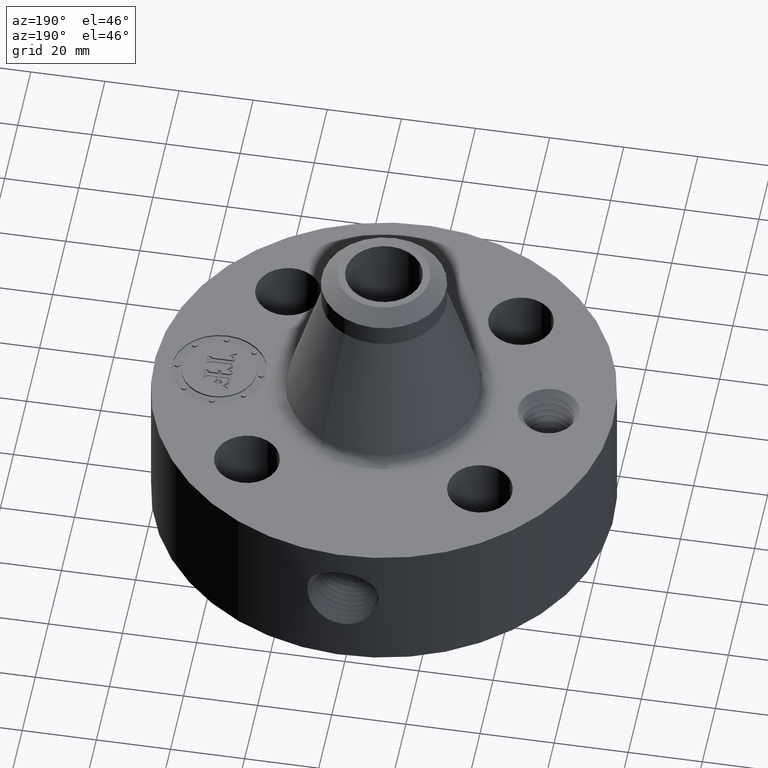
[diagram: clean part render]
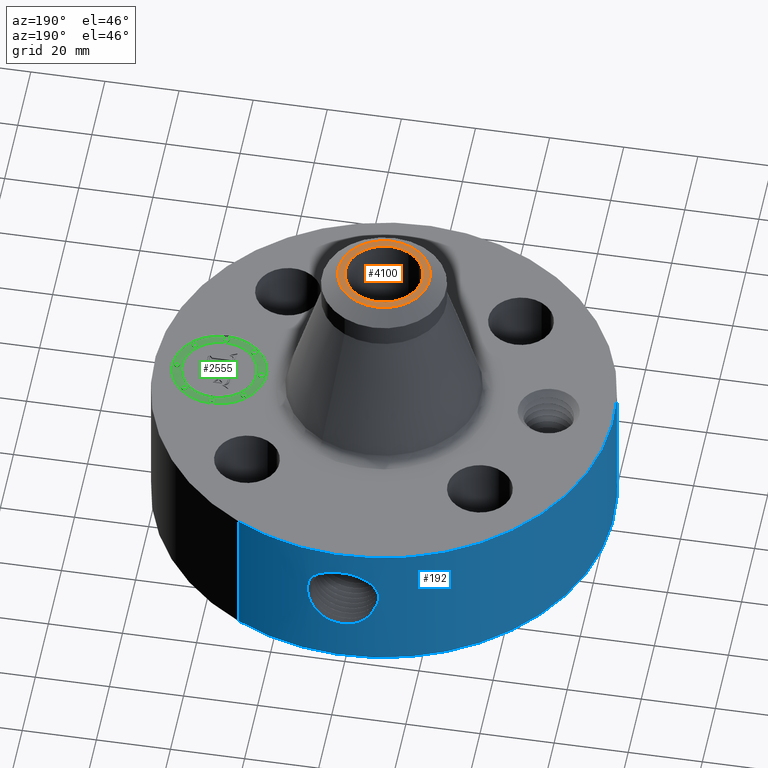
[diagram: same view with three faces highlighted in distinct colors, each labeled with its STEP entity id]
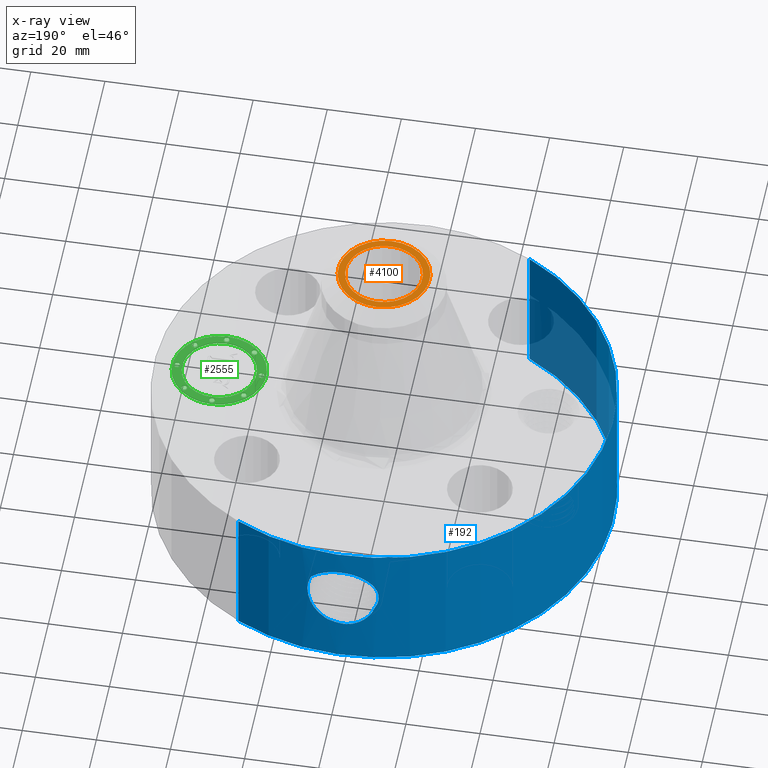
[diagram: x-ray of the same camera — body ghosted, the three highlighted faces saturated]
A machine part, auxiliary view with three faces highlighted in distinct colors.
The next image is the same camera in x-ray (body ghosted, the three faces saturated) — at least one of them is partly hidden behind the body in this view.
Their STEP definitions:

[orange] entity #4100 — the highlighted planar face has unit normal (0, 0, -1).
#2819=AXIS2_PLACEMENT_3D('Circle Axis2P3D',#2817,#2818,$) ;
#2893=AXIS2_PLACEMENT_3D('Circle Axis2P3D',#2891,#2892,$) ;
#4076=AXIS2_PLACEMENT_3D('Plane Axis2P3D',#4073,#4074,#4075) ;
#4080=AXIS2_PLACEMENT_3D('Circle Axis2P3D',#4078,#4079,$) ;
#4089=AXIS2_PLACEMENT_3D('Circle Axis2P3D',#4087,#4088,$) ;
#2817=CARTESIAN_POINT('Axis2P3D Location',(0.,0.,3.31000000001)) ;
#2821=CARTESIAN_POINT('Vertex',(0.195365906982,0.357614893972,3.31000000001)) ;
#2823=CARTESIAN_POINT('Vertex',(-0.195365906982,-0.357614893972,3.31000000001)) ;
#2891=CARTESIAN_POINT('Axis2P3D Location',(0.,0.,3.31000000001)) ;
#4073=CARTESIAN_POINT('Axis2P3D Location',(0.,0.660000000003,3.31000000001)) ;
#4078=CARTESIAN_POINT('Axis2P3D Location',(0.,0.,3.31000000001)) ;
#4082=CARTESIAN_POINT('Vertex',(0.233115949392,-0.426715883097,3.31000000001)) ;
#4084=CARTESIAN_POINT('Vertex',(-0.233115949392,0.426715883097,3.31000000001)) ;
#4087=CARTESIAN_POINT('Axis2P3D Location',(0.,0.,3.31000000001)) ;
#2818=DIRECTION('Axis2P3D Direction',(0.,0.,-0.0393700787402)) ;
#2892=DIRECTION('Axis2P3D Direction',(0.,0.,-0.0393700787402)) ;
#4074=DIRECTION('Axis2P3D Direction',(0.,0.,-0.0393700787402)) ;
#4075=DIRECTION('Axis2P3D XDirection',(0.0393700787402,0.,0.)) ;
#4079=DIRECTION('Axis2P3D Direction',(0.,0.,-0.0393700787402)) ;
#4088=DIRECTION('Axis2P3D Direction',(0.,0.,-0.0393700787402)) ;
#4093=ORIENTED_EDGE('',*,*,#4086,.T.) ;
#4094=ORIENTED_EDGE('',*,*,#4091,.T.) ;
#4097=ORIENTED_EDGE('',*,*,#2895,.T.) ;
#4098=ORIENTED_EDGE('',*,*,#2825,.T.) ;
#4099=FACE_BOUND('',#4096,.T.) ;
#4100=ADVANCED_FACE('PartBody',(#4095,#4099),#4077,.F.) ;
#2820=CIRCLE('generated circle',#2819,0.407500000002) ;
#2894=CIRCLE('generated circle',#2893,0.407500000002) ;
#4081=CIRCLE('generated circle',#4080,0.486240157482) ;
#4090=CIRCLE('generated circle',#4089,0.486240157482) ;
#2825=EDGE_CURVE('',#2822,#2824,#2820,.T.) ;
#2895=EDGE_CURVE('',#2824,#2822,#2894,.T.) ;
#4086=EDGE_CURVE('',#4083,#4085,#4081,.F.) ;
#4091=EDGE_CURVE('',#4085,#4083,#4090,.F.) ;
#4092=EDGE_LOOP('',(#4093,#4094)) ;
#4096=EDGE_LOOP('',(#4097,#4098)) ;
#4095=FACE_OUTER_BOUND('',#4092,.T.) ;
#4077=PLANE('',#4076) ;
#2822=VERTEX_POINT('',#2821) ;
#2824=VERTEX_POINT('',#2823) ;
#4083=VERTEX_POINT('',#4082) ;
#4085=VERTEX_POINT('',#4084) ;

[blue] entity #192 — the highlighted cylindrical surface (partial cylindrical patch) has radius 61.976 mm, axis along (0, 0, -1).
#38=AXIS2_PLACEMENT_3D('Cylinder Axis2P3D',#35,#36,#37) ;
#42=AXIS2_PLACEMENT_3D('Circle Axis2P3D',#40,#41,$) ;
#58=AXIS2_PLACEMENT_3D('Circle Axis2P3D',#56,#57,$) ;
#35=CARTESIAN_POINT('Axis2P3D Location',(0.,0.,1.65500000001)) ;
#40=CARTESIAN_POINT('Axis2P3D Location',(0.,0.,0.0600000000002)) ;
#44=CARTESIAN_POINT('Vertex',(-1.1697983142,-2.14130145102,0.0600000000002)) ;
#46=CARTESIAN_POINT('Vertex',(1.1697983142,2.14130145102,0.0600000000002)) ;
#49=CARTESIAN_POINT('Line Origine',(-1.1697983142,-2.14130145102,0.810000000003)) ;
#53=CARTESIAN_POINT('Vertex',(-1.1697983142,-2.14130145102,1.56000000001)) ;
#56=CARTESIAN_POINT('Axis2P3D Location',(0.,0.,1.56000000001)) ;
#60=CARTESIAN_POINT('Vertex',(1.1697983142,2.14130145102,1.56000000001)) ;
#63=CARTESIAN_POINT('Line Origine',(1.1697983142,2.14130145102,0.810000000003)) ;
#75=CARTESIAN_POINT('Control Point',(-0.16192159428,2.4346214074,1.25474246112)) ;
#76=CARTESIAN_POINT('Control Point',(-0.124761678529,2.43709283592,1.27394650423)) ;
#77=CARTESIAN_POINT('Control Point',(-0.0845285010664,2.43901250296,1.28730102498)) ;
#78=CARTESIAN_POINT('Control Point',(-0.0426266264087,2.43998754964,1.2940330846)) ;
#79=CARTESIAN_POINT('Control Point',(-0.000718733828818,2.43999989415,1.29411849633)) ;
#80=CARTESIAN_POINT('Vertex',(-0.161921600554,2.43462140699,1.25474245803)) ;
#82=CARTESIAN_POINT('Vertex',(-0.000718469330936,2.43999989423,1.29411850216)) ;
#86=CARTESIAN_POINT('Control Point',(-0.16989837306,2.43407776024,1.25094225976)) ;
#87=CARTESIAN_POINT('Control Point',(-0.167252431002,2.43426244672,1.25223769882)) ;
#88=CARTESIAN_POINT('Control Point',(-0.164593290179,2.43444371847,1.25350443879)) ;
#89=CARTESIAN_POINT('Control Point',(-0.161921599901,2.43462140702,1.25474245516)) ;
#90=CARTESIAN_POINT('Vertex',(-0.16989837306,2.43407776024,1.25094225976)) ;
#94=CARTESIAN_POINT('Control Point',(-0.328116375832,2.41783780348,0.808661705007)) ;
#95=CARTESIAN_POINT('Control Point',(-0.351266820575,2.41469613699,0.847920653402)) ;
#96=CARTESIAN_POINT('Control Point',(-0.367537068292,2.41220597774,0.89196714565)) ;
#97=CARTESIAN_POINT('Control Point',(-0.374754426078,2.41102143693,0.939647099953)) ;
#98=CARTESIAN_POINT('Control Point',(-0.370017243739,2.41184047452,1.00871566147)) ;
#99=CARTESIAN_POINT('Control Point',(-0.346589033701,2.41527741307,1.0725719509)) ;
#100=CARTESIAN_POINT('Control Point',(-0.337668385426,2.41655315053,1.09162203602)) ;
#101=CARTESIAN_POINT('Control Point',(-0.307764301181,2.42066054004,1.1438749814)) ;
#102=CARTESIAN_POINT('Control Point',(-0.26699888278,2.42558826776,1.18820864016)) ;
#103=CARTESIAN_POINT('Control Point',(-0.236947873253,2.428785004,1.21314596385)) ;
#104=CARTESIAN_POINT('Control Point',(-0.204355865071,2.4316726309,1.23407205562)) ;
#105=CARTESIAN_POINT('Control Point',(-0.16989837306,2.43407776024,1.25094225976)) ;
#106=CARTESIAN_POINT('Vertex',(-0.328116855676,2.4178375316,0.808661757571)) ;
#110=CARTESIAN_POINT('Control Point',(-0.320424227439,2.41886922228,0.790797428483)) ;
#111=CARTESIAN_POINT('Control Point',(-0.32315137982,2.41850796022,0.796680963763)) ;
#112=CARTESIAN_POINT('Control Point',(-0.325717354748,2.41816336819,0.802639990313)) ;
#113=CARTESIAN_POINT('Control Point',(-0.328118233166,2.41783755143,0.808665582028)) ;
#114=CARTESIAN_POINT('Vertex',(-0.320424889206,2.41886937017,0.790798496527)) ;
#118=CARTESIAN_POINT('Control Point',(-0.0268393869742,2.43985238229,0.530897557486)) ;
#119=CARTESIAN_POINT('Control Point',(-0.111814828561,2.43891761723,0.542087008345)) ;
#120=CARTESIAN_POINT('Control Point',(-0.192381472719,2.43423204041,0.58204711516)) ;
#121=CARTESIAN_POINT('Control Point',(-0.253315115577,2.42735806073,0.644291367861)) ;
#122=CARTESIAN_POINT('Control Point',(-0.296042119694,2.42209908944,0.715167636117)) ;
#123=CARTESIAN_POINT('Control Point',(-0.320424558949,2.41886917837,0.790798572524)) ;
#124=CARTESIAN_POINT('Vertex',(-0.0268393869742,2.43985238229,0.530897557486)) ;
#128=CARTESIAN_POINT('Control Point',(-0.0268393869742,2.43985238229,0.530897557486)) ;
#129=CARTESIAN_POINT('Control Point',(-0.0178847963814,2.43995088649,0.530836461707)) ;
#130=CARTESIAN_POINT('Control Point',(-0.00893312393866,2.44000001,0.530995456445)) ;
#131=CARTESIAN_POINT('Control Point',(2.72878353701E-006,2.44000000001,0.531374667804)) ;
#132=CARTESIAN_POINT('Vertex',(2.72878353722E-006,2.44000000001,0.531374667804)) ;
#136=CARTESIAN_POINT('Control Point',(0.165476014271,2.43438240397,0.565083204059)) ;
#137=CARTESIAN_POINT('Control Point',(0.112562343707,2.43797918617,0.544988923625)) ;
#138=CARTESIAN_POINT('Control Point',(0.0565393148663,2.43999993678,0.533773914324)) ;
#139=CARTESIAN_POINT('Control Point',(2.72878353703E-006,2.44000000001,0.531374667804)) ;
#140=CARTESIAN_POINT('Vertex',(0.165476014271,2.43438240397,0.565083204059)) ;
#144=CARTESIAN_POINT('Control Point',(0.165476014271,2.43438240397,0.565083204059)) ;
#145=CARTESIAN_POINT('Control Point',(0.175740725453,2.43368466499,0.570334729546)) ;
#146=CARTESIAN_POINT('Control Point',(0.185738859904,2.43293967132,0.576087631637)) ;
#147=CARTESIAN_POINT('Control Point',(0.195421989316,2.43216164063,0.582285375744)) ;
#148=CARTESIAN_POINT('Vertex',(0.195421989316,2.43216164063,0.582285375744)) ;
#152=CARTESIAN_POINT('Control Point',(0.195421989316,2.43216164063,0.582285375744)) ;
#153=CARTESIAN_POINT('Control Point',(0.24799825553,2.42793718516,0.615937124183)) ;
#154=CARTESIAN_POINT('Control Point',(0.293011536399,2.42289055424,0.660601235609)) ;
#155=CARTESIAN_POINT('Control Point',(0.328229760172,2.41805808128,0.712425717433)) ;
#156=CARTESIAN_POINT('Control Point',(0.382261864298,2.41005605017,0.829676974235)) ;
#157=CARTESIAN_POINT('Control Point',(0.395270513622,2.40773032595,0.958065769523)) ;
#158=CARTESIAN_POINT('Control Point',(0.390965855304,2.40847371399,1.02561774612)) ;
#159=CARTESIAN_POINT('Control Point',(0.375402852344,2.41110143503,1.09202151238)) ;
#160=CARTESIAN_POINT('Control Point',(0.348525615673,2.4149803095,1.15442637902)) ;
#161=CARTESIAN_POINT('Vertex',(0.348525615673,2.4149803095,1.15442637902)) ;
#165=CARTESIAN_POINT('Control Point',(0.348525615673,2.4149803095,1.15442637902)) ;
#166=CARTESIAN_POINT('Control Point',(0.29430195647,2.42280577049,1.21385963823)) ;
#167=CARTESIAN_POINT('Control Point',(0.226049836595,2.43110253319,1.25810660708)) ;
#168=CARTESIAN_POINT('Control Point',(0.151999424156,2.43708486052,1.28575229226)) ;
#169=CARTESIAN_POINT('Control Point',(0.0753413751175,2.44000079858,1.29784713552)) ;
#170=CARTESIAN_POINT('Control Point',(-2.58579354753E-005,2.43999999987,1.29415298447)) ;
#171=CARTESIAN_POINT('Vertex',(-2.58579354725E-005,2.43999999987,1.29415298447)) ;
#175=CARTESIAN_POINT('Control Point',(-0.000718469314818,2.43999989423,1.29411850215)) ;
#176=CARTESIAN_POINT('Control Point',(-0.000372184904082,2.4399999962,1.29413600915)) ;
#177=CARTESIAN_POINT('Control Point',(-2.58579482161E-005,2.43999999987,1.29415298447)) ;
#36=DIRECTION('Axis2P3D Direction',(0.,0.,-0.0393700787402)) ;
#37=DIRECTION('Axis2P3D XDirection',(0.0188750212049,0.0345504945626,0.)) ;
#41=DIRECTION('Axis2P3D Direction',(0.,0.,-0.0393700787402)) ;
#50=DIRECTION('Vector Direction',(0.,0.,-0.0393700787402)) ;
#57=DIRECTION('Axis2P3D Direction',(0.,0.,-0.0393700787402)) ;
#64=DIRECTION('Vector Direction',(0.,0.,-0.0393700787402)) ;
#51=VECTOR('Line Direction',#50,0.0393700787402) ;
#65=VECTOR('Line Direction',#64,0.0393700787402) ;
#69=ORIENTED_EDGE('',*,*,#48,.F.) ;
#70=ORIENTED_EDGE('',*,*,#55,.T.) ;
#71=ORIENTED_EDGE('',*,*,#62,.T.) ;
#72=ORIENTED_EDGE('',*,*,#67,.F.) ;
#180=ORIENTED_EDGE('',*,*,#84,.F.) ;
#181=ORIENTED_EDGE('',*,*,#92,.F.) ;
#182=ORIENTED_EDGE('',*,*,#108,.F.) ;
#183=ORIENTED_EDGE('',*,*,#116,.F.) ;
#184=ORIENTED_EDGE('',*,*,#126,.F.) ;
#185=ORIENTED_EDGE('',*,*,#134,.T.) ;
#186=ORIENTED_EDGE('',*,*,#142,.F.) ;
#187=ORIENTED_EDGE('',*,*,#150,.T.) ;
#188=ORIENTED_EDGE('',*,*,#163,.T.) ;
#189=ORIENTED_EDGE('',*,*,#173,.T.) ;
#190=ORIENTED_EDGE('',*,*,#178,.F.) ;
#191=FACE_BOUND('',#179,.T.) ;
#192=ADVANCED_FACE('PartBody',(#73,#191),#39,.T.) ;
#74=B_SPLINE_CURVE_WITH_KNOTS('',4,(#75,#76,#77,#78,#79),.UNSPECIFIED.,.F.,.U.,(5,5),(0.175518252428,6.37462366422),.UNSPECIFIED.) ;
#85=B_SPLINE_CURVE_WITH_KNOTS('',3,(#86,#87,#88,#89),.UNSPECIFIED.,.F.,.U.,(4,4),(0.,0.330159466821),.UNSPECIFIED.) ;
#93=B_SPLINE_CURVE_WITH_KNOTS('',5,(#94,#95,#96,#97,#98,#99,#100,#101,#102,#103,#104,#105),.UNSPECIFIED.,.F.,.U.,(6,3,3,6),(0.,8.5309521216,12.3556763001,19.5216604227),.UNSPECIFIED.) ;
#109=B_SPLINE_CURVE_WITH_KNOTS('',3,(#110,#111,#112,#113),.UNSPECIFIED.,.F.,.U.,(4,4),(9.5654075013,10.2865901352),.UNSPECIFIED.) ;
#117=B_SPLINE_CURVE_WITH_KNOTS('',5,(#118,#119,#120,#121,#122,#123),.UNSPECIFIED.,.F.,.U.,(6,6),(0.,14.8989557169),.UNSPECIFIED.) ;
#127=B_SPLINE_CURVE_WITH_KNOTS('',3,(#128,#129,#130,#131),.UNSPECIFIED.,.F.,.U.,(4,4),(0.,0.933901051561),.UNSPECIFIED.) ;
#135=B_SPLINE_CURVE_WITH_KNOTS('',3,(#136,#137,#138,#139),.UNSPECIFIED.,.F.,.U.,(4,4),(0.,5.90873404336),.UNSPECIFIED.) ;
#143=B_SPLINE_CURVE_WITH_KNOTS('',3,(#144,#145,#146,#147),.UNSPECIFIED.,.F.,.U.,(4,4),(0.,1.203436921),.UNSPECIFIED.) ;
#151=B_SPLINE_CURVE_WITH_KNOTS('',5,(#152,#153,#154,#155,#156,#157,#158,#159,#160),.UNSPECIFIED.,.F.,.U.,(6,3,6),(0.,10.8904564305,22.7389374471),.UNSPECIFIED.) ;
#164=B_SPLINE_CURVE_WITH_KNOTS('',5,(#165,#166,#167,#168,#169,#170),.UNSPECIFIED.,.F.,.U.,(6,6),(0.,14.0876899551),.UNSPECIFIED.) ;
#174=B_SPLINE_CURVE_WITH_KNOTS('',2,(#175,#176,#177),.UNSPECIFIED.,.F.,.U.,(3,3),(1.28066519652,1.30655945912),.UNSPECIFIED.) ;
#43=CIRCLE('generated circle',#42,2.44000000001) ;
#59=CIRCLE('generated circle',#58,2.44000000001) ;
#39=CYLINDRICAL_SURFACE('generated cylinder',#38,2.44000000001) ;
#48=EDGE_CURVE('',#45,#47,#43,.T.) ;
#55=EDGE_CURVE('',#45,#54,#52,.F.) ;
#62=EDGE_CURVE('',#54,#61,#59,.T.) ;
#67=EDGE_CURVE('',#47,#61,#66,.F.) ;
#84=EDGE_CURVE('',#81,#83,#74,.T.) ;
#92=EDGE_CURVE('',#91,#81,#85,.T.) ;
#108=EDGE_CURVE('',#107,#91,#93,.T.) ;
#116=EDGE_CURVE('',#115,#107,#109,.T.) ;
#126=EDGE_CURVE('',#125,#115,#117,.T.) ;
#134=EDGE_CURVE('',#125,#133,#127,.T.) ;
#142=EDGE_CURVE('',#141,#133,#135,.T.) ;
#150=EDGE_CURVE('',#141,#149,#143,.T.) ;
#163=EDGE_CURVE('',#149,#162,#151,.T.) ;
#173=EDGE_CURVE('',#162,#172,#164,.T.) ;
#178=EDGE_CURVE('',#83,#172,#174,.T.) ;
#68=EDGE_LOOP('',(#69,#70,#71,#72)) ;
#179=EDGE_LOOP('',(#180,#181,#182,#183,#184,#185,#186,#187,#188,#189,#190)) ;
#73=FACE_OUTER_BOUND('',#68,.T.) ;
#52=LINE('Line',#49,#51) ;
#66=LINE('Line',#63,#65) ;
#45=VERTEX_POINT('',#44) ;
#47=VERTEX_POINT('',#46) ;
#54=VERTEX_POINT('',#53) ;
#61=VERTEX_POINT('',#60) ;
#81=VERTEX_POINT('',#80) ;
#83=VERTEX_POINT('',#82) ;
#91=VERTEX_POINT('',#90) ;
#107=VERTEX_POINT('',#106) ;
#115=VERTEX_POINT('',#114) ;
#125=VERTEX_POINT('',#124) ;
#133=VERTEX_POINT('',#132) ;
#141=VERTEX_POINT('',#140) ;
#149=VERTEX_POINT('',#148) ;
#162=VERTEX_POINT('',#161) ;
#172=VERTEX_POINT('',#171) ;

[green] entity #2555 — the highlighted planar face has unit normal (0, 0, 1).
#1802=AXIS2_PLACEMENT_3D('Circle Axis2P3D',#1800,#1801,$) ;
#1829=AXIS2_PLACEMENT_3D('Circle Axis2P3D',#1827,#1828,$) ;
#2387=AXIS2_PLACEMENT_3D('Plane Axis2P3D',#2384,#2385,#2386) ;
#2395=AXIS2_PLACEMENT_3D('Circle Axis2P3D',#2393,#2394,$) ;
#2404=AXIS2_PLACEMENT_3D('Circle Axis2P3D',#2402,#2403,$) ;
#2413=AXIS2_PLACEMENT_3D('Circle Axis2P3D',#2411,#2412,$) ;
#2422=AXIS2_PLACEMENT_3D('Circle Axis2P3D',#2420,#2421,$) ;
#2431=AXIS2_PLACEMENT_3D('Circle Axis2P3D',#2429,#2430,$) ;
#2440=AXIS2_PLACEMENT_3D('Circle Axis2P3D',#2438,#2439,$) ;
#2449=AXIS2_PLACEMENT_3D('Circle Axis2P3D',#2447,#2448,$) ;
#2458=AXIS2_PLACEMENT_3D('Circle Axis2P3D',#2456,#2457,$) ;
#2467=AXIS2_PLACEMENT_3D('Circle Axis2P3D',#2465,#2466,$) ;
#2476=AXIS2_PLACEMENT_3D('Circle Axis2P3D',#2474,#2475,$) ;
#2485=AXIS2_PLACEMENT_3D('Circle Axis2P3D',#2483,#2484,$) ;
#2494=AXIS2_PLACEMENT_3D('Circle Axis2P3D',#2492,#2493,$) ;
#2503=AXIS2_PLACEMENT_3D('Circle Axis2P3D',#2501,#2502,$) ;
#2512=AXIS2_PLACEMENT_3D('Circle Axis2P3D',#2510,#2511,$) ;
#2521=AXIS2_PLACEMENT_3D('Circle Axis2P3D',#2519,#2520,$) ;
#2530=AXIS2_PLACEMENT_3D('Circle Axis2P3D',#2528,#2529,$) ;
#2539=AXIS2_PLACEMENT_3D('Circle Axis2P3D',#2537,#2538,$) ;
#2548=AXIS2_PLACEMENT_3D('Circle Axis2P3D',#2546,#2547,$) ;
#1797=CARTESIAN_POINT('Vertex',(1.75000000001,-0.499999995002,1.54500000001)) ;
#1800=CARTESIAN_POINT('Axis2P3D Location',(1.75000000001,-4.38103225949E-015,1.54500000001)) ;
#1804=CARTESIAN_POINT('Vertex',(1.75000000001,0.499999995002,1.54500000001)) ;
#1827=CARTESIAN_POINT('Axis2P3D Location',(1.75000000001,-4.38103225949E-015,1.54500000001)) ;
#2384=CARTESIAN_POINT('Axis2P3D Location',(0.,0.,1.54500000001)) ;
#2393=CARTESIAN_POINT('Axis2P3D Location',(1.75000000001,-4.38103225949E-015,1.54500000001)) ;
#2397=CARTESIAN_POINT('Vertex',(1.75000000001,-0.393939390002,1.54500000001)) ;
#2399=CARTESIAN_POINT('Vertex',(1.75000000001,0.393939390002,1.54500000001)) ;
#2402=CARTESIAN_POINT('Axis2P3D Location',(1.75000000001,-4.38103225949E-015,1.54500000001)) ;
#2411=CARTESIAN_POINT('Axis2P3D Location',(1.30303030751,-5.65258331292E-015,1.54500000001)) ;
#2415=CARTESIAN_POINT('Vertex',(1.30303030751,-0.0303030300001,1.54500000001)) ;
#2417=CARTESIAN_POINT('Vertex',(1.30303030751,0.0303030300001,1.54500000001)) ;
#2420=CARTESIAN_POINT('Axis2P3D Location',(1.30303030751,-5.65258331292E-015,1.54500000001)) ;
#2429=CARTESIAN_POINT('Axis2P3D Location',(1.75000000001,0.446969692502,1.54500000001)) ;
#2433=CARTESIAN_POINT('Vertex',(1.75000000001,0.416666662502,1.54500000001)) ;
#2435=CARTESIAN_POINT('Vertex',(1.75000000001,0.477272722502,1.54500000001)) ;
#2438=CARTESIAN_POINT('Axis2P3D Location',(1.75000000001,0.446969692502,1.54500000001)) ;
#2447=CARTESIAN_POINT('Axis2P3D Location',(1.43394469945,0.316055300553,1.54500000001)) ;
#2451=CARTESIAN_POINT('Vertex',(1.43394469945,0.285752270553,1.54500000001)) ;
#2453=CARTESIAN_POINT('Vertex',(1.43394469945,0.346358330553,1.54500000001)) ;
#2456=CARTESIAN_POINT('Axis2P3D Location',(1.43394469945,0.316055300553,1.54500000001)) ;
#2465=CARTESIAN_POINT('Axis2P3D Location',(2.19696969251,7.34549412211E-015,1.54500000001)) ;
#2469=CARTESIAN_POINT('Vertex',(2.19696969251,-0.0303030300001,1.54500000001)) ;
#2471=CARTESIAN_POINT('Vertex',(2.19696969251,0.0303030300001,1.54500000001)) ;
#2474=CARTESIAN_POINT('Axis2P3D Location',(2.19696969251,7.34549412211E-015,1.54500000001)) ;
#2483=CARTESIAN_POINT('Axis2P3D Location',(2.06605530056,0.316055300553,1.54500000001)) ;
#2487=CARTESIAN_POINT('Vertex',(2.06605530056,0.285752270553,1.54500000001)) ;
#2489=CARTESIAN_POINT('Vertex',(2.06605530056,0.346358330553,1.54500000001)) ;
#2492=CARTESIAN_POINT('Axis2P3D Location',(2.06605530056,0.316055300553,1.54500000001)) ;
#2501=CARTESIAN_POINT('Axis2P3D Location',(1.75000000001,-0.446969692502,1.54500000001)) ;
#2505=CARTESIAN_POINT('Vertex',(1.75000000001,-0.416666662502,1.54500000001)) ;
#2507=CARTESIAN_POINT('Vertex',(1.75000000001,-0.477272722502,1.54500000001)) ;
#2510=CARTESIAN_POINT('Axis2P3D Location',(1.75000000001,-0.446969692502,1.54500000001)) ;
#2519=CARTESIAN_POINT('Axis2P3D Location',(1.43394469945,-0.316055300553,1.54500000001)) ;
#2523=CARTESIAN_POINT('Vertex',(1.43394469945,-0.285752270553,1.54500000001)) ;
#2525=CARTESIAN_POINT('Vertex',(1.43394469945,-0.346358330553,1.54500000001)) ;
#2528=CARTESIAN_POINT('Axis2P3D Location',(1.43394469945,-0.316055300553,1.54500000001)) ;
#2537=CARTESIAN_POINT('Axis2P3D Location',(2.06605530056,-0.316055300553,1.54500000001)) ;
#2541=CARTESIAN_POINT('Vertex',(2.06605530056,-0.285752270553,1.54500000001)) ;
#2543=CARTESIAN_POINT('Vertex',(2.06605530056,-0.346358330553,1.54500000001)) ;
#2546=CARTESIAN_POINT('Axis2P3D Location',(2.06605530056,-0.316055300553,1.54500000001)) ;
#1801=DIRECTION('Axis2P3D Direction',(0.,0.,0.0393700787402)) ;
#1828=DIRECTION('Axis2P3D Direction',(0.,0.,0.0393700787402)) ;
#2385=DIRECTION('Axis2P3D Direction',(0.,0.,0.0393700787402)) ;
#2386=DIRECTION('Axis2P3D XDirection',(0.0393700787402,0.,0.)) ;
#2394=DIRECTION('Axis2P3D Direction',(0.,0.,0.0393700787402)) ;
#2403=DIRECTION('Axis2P3D Direction',(0.,0.,0.0393700787402)) ;
#2412=DIRECTION('Axis2P3D Direction',(0.,0.,0.0393700787402)) ;
#2421=DIRECTION('Axis2P3D Direction',(0.,0.,0.0393700787402)) ;
#2430=DIRECTION('Axis2P3D Direction',(0.,0.,0.0393700787402)) ;
#2439=DIRECTION('Axis2P3D Direction',(0.,0.,0.0393700787402)) ;
#2448=DIRECTION('Axis2P3D Direction',(0.,0.,0.0393700787402)) ;
#2457=DIRECTION('Axis2P3D Direction',(0.,0.,0.0393700787402)) ;
#2466=DIRECTION('Axis2P3D Direction',(0.,0.,0.0393700787402)) ;
#2475=DIRECTION('Axis2P3D Direction',(0.,0.,0.0393700787402)) ;
#2484=DIRECTION('Axis2P3D Direction',(0.,0.,0.0393700787402)) ;
#2493=DIRECTION('Axis2P3D Direction',(0.,0.,0.0393700787402)) ;
#2502=DIRECTION('Axis2P3D Direction',(0.,0.,0.0393700787402)) ;
#2511=DIRECTION('Axis2P3D Direction',(0.,0.,0.0393700787402)) ;
#2520=DIRECTION('Axis2P3D Direction',(0.,0.,0.0393700787402)) ;
#2529=DIRECTION('Axis2P3D Direction',(0.,0.,0.0393700787402)) ;
#2538=DIRECTION('Axis2P3D Direction',(0.,0.,0.0393700787402)) ;
#2547=DIRECTION('Axis2P3D Direction',(0.,0.,0.0393700787402)) ;
#2390=ORIENTED_EDGE('',*,*,#1806,.T.) ;
#2391=ORIENTED_EDGE('',*,*,#1831,.T.) ;
#2408=ORIENTED_EDGE('',*,*,#2401,.F.) ;
#2409=ORIENTED_EDGE('',*,*,#2406,.F.) ;
#2426=ORIENTED_EDGE('',*,*,#2419,.F.) ;
#2427=ORIENTED_EDGE('',*,*,#2424,.F.) ;
#2444=ORIENTED_EDGE('',*,*,#2437,.F.) ;
#2445=ORIENTED_EDGE('',*,*,#2442,.F.) ;
#2462=ORIENTED_EDGE('',*,*,#2455,.F.) ;
#2463=ORIENTED_EDGE('',*,*,#2460,.F.) ;
#2480=ORIENTED_EDGE('',*,*,#2473,.F.) ;
#2481=ORIENTED_EDGE('',*,*,#2478,.F.) ;
#2498=ORIENTED_EDGE('',*,*,#2491,.F.) ;
#2499=ORIENTED_EDGE('',*,*,#2496,.F.) ;
#2516=ORIENTED_EDGE('',*,*,#2509,.F.) ;
#2517=ORIENTED_EDGE('',*,*,#2514,.F.) ;
#2534=ORIENTED_EDGE('',*,*,#2527,.F.) ;
#2535=ORIENTED_EDGE('',*,*,#2532,.F.) ;
#2552=ORIENTED_EDGE('',*,*,#2545,.F.) ;
#2553=ORIENTED_EDGE('',*,*,#2550,.F.) ;
#2410=FACE_BOUND('',#2407,.T.) ;
#2428=FACE_BOUND('',#2425,.T.) ;
#2446=FACE_BOUND('',#2443,.T.) ;
#2464=FACE_BOUND('',#2461,.T.) ;
#2482=FACE_BOUND('',#2479,.T.) ;
#2500=FACE_BOUND('',#2497,.T.) ;
#2518=FACE_BOUND('',#2515,.T.) ;
#2536=FACE_BOUND('',#2533,.T.) ;
#2554=FACE_BOUND('',#2551,.T.) ;
#2555=ADVANCED_FACE('PartBody',(#2392,#2410,#2428,#2446,#2464,#2482,#2500,#2518,#2536,#2554),#2388,.T.) ;
#1803=CIRCLE('generated circle',#1802,0.499999995002) ;
#1830=CIRCLE('generated circle',#1829,0.499999995002) ;
#2396=CIRCLE('generated circle',#2395,0.393939390002) ;
#2405=CIRCLE('generated circle',#2404,0.393939390002) ;
#2414=CIRCLE('generated circle',#2413,0.0303030300001) ;
#2423=CIRCLE('generated circle',#2422,0.0303030300001) ;
#2432=CIRCLE('generated circle',#2431,0.0303030300001) ;
#2441=CIRCLE('generated circle',#2440,0.0303030300001) ;
#2450=CIRCLE('generated circle',#2449,0.0303030300001) ;
#2459=CIRCLE('generated circle',#2458,0.0303030300001) ;
#2468=CIRCLE('generated circle',#2467,0.0303030300001) ;
#2477=CIRCLE('generated circle',#2476,0.0303030300001) ;
#2486=CIRCLE('generated circle',#2485,0.0303030300001) ;
#2495=CIRCLE('generated circle',#2494,0.0303030300001) ;
#2504=CIRCLE('generated circle',#2503,0.0303030300001) ;
#2513=CIRCLE('generated circle',#2512,0.0303030300001) ;
#2522=CIRCLE('generated circle',#2521,0.0303030300001) ;
#2531=CIRCLE('generated circle',#2530,0.0303030300001) ;
#2540=CIRCLE('generated circle',#2539,0.0303030300001) ;
#2549=CIRCLE('generated circle',#2548,0.0303030300001) ;
#1806=EDGE_CURVE('',#1805,#1798,#1803,.T.) ;
#1831=EDGE_CURVE('',#1798,#1805,#1830,.T.) ;
#2401=EDGE_CURVE('',#2398,#2400,#2396,.T.) ;
#2406=EDGE_CURVE('',#2400,#2398,#2405,.T.) ;
#2419=EDGE_CURVE('',#2416,#2418,#2414,.T.) ;
#2424=EDGE_CURVE('',#2418,#2416,#2423,.T.) ;
#2437=EDGE_CURVE('',#2434,#2436,#2432,.T.) ;
#2442=EDGE_CURVE('',#2436,#2434,#2441,.T.) ;
#2455=EDGE_CURVE('',#2452,#2454,#2450,.T.) ;
#2460=EDGE_CURVE('',#2454,#2452,#2459,.T.) ;
#2473=EDGE_CURVE('',#2470,#2472,#2468,.T.) ;
#2478=EDGE_CURVE('',#2472,#2470,#2477,.T.) ;
#2491=EDGE_CURVE('',#2488,#2490,#2486,.T.) ;
#2496=EDGE_CURVE('',#2490,#2488,#2495,.T.) ;
#2509=EDGE_CURVE('',#2506,#2508,#2504,.T.) ;
#2514=EDGE_CURVE('',#2508,#2506,#2513,.T.) ;
#2527=EDGE_CURVE('',#2524,#2526,#2522,.T.) ;
#2532=EDGE_CURVE('',#2526,#2524,#2531,.T.) ;
#2545=EDGE_CURVE('',#2542,#2544,#2540,.T.) ;
#2550=EDGE_CURVE('',#2544,#2542,#2549,.T.) ;
#2389=EDGE_LOOP('',(#2390,#2391)) ;
#2407=EDGE_LOOP('',(#2408,#2409)) ;
#2425=EDGE_LOOP('',(#2426,#2427)) ;
#2443=EDGE_LOOP('',(#2444,#2445)) ;
#2461=EDGE_LOOP('',(#2462,#2463)) ;
#2479=EDGE_LOOP('',(#2480,#2481)) ;
#2497=EDGE_LOOP('',(#2498,#2499)) ;
#2515=EDGE_LOOP('',(#2516,#2517)) ;
#2533=EDGE_LOOP('',(#2534,#2535)) ;
#2551=EDGE_LOOP('',(#2552,#2553)) ;
#2392=FACE_OUTER_BOUND('',#2389,.T.) ;
#2388=PLANE('',#2387) ;
#1798=VERTEX_POINT('',#1797) ;
#1805=VERTEX_POINT('',#1804) ;
#2398=VERTEX_POINT('',#2397) ;
#2400=VERTEX_POINT('',#2399) ;
#2416=VERTEX_POINT('',#2415) ;
#2418=VERTEX_POINT('',#2417) ;
#2434=VERTEX_POINT('',#2433) ;
#2436=VERTEX_POINT('',#2435) ;
#2452=VERTEX_POINT('',#2451) ;
#2454=VERTEX_POINT('',#2453) ;
#2470=VERTEX_POINT('',#2469) ;
#2472=VERTEX_POINT('',#2471) ;
#2488=VERTEX_POINT('',#2487) ;
#2490=VERTEX_POINT('',#2489) ;
#2506=VERTEX_POINT('',#2505) ;
#2508=VERTEX_POINT('',#2507) ;
#2524=VERTEX_POINT('',#2523) ;
#2526=VERTEX_POINT('',#2525) ;
#2542=VERTEX_POINT('',#2541) ;
#2544=VERTEX_POINT('',#2543) ;